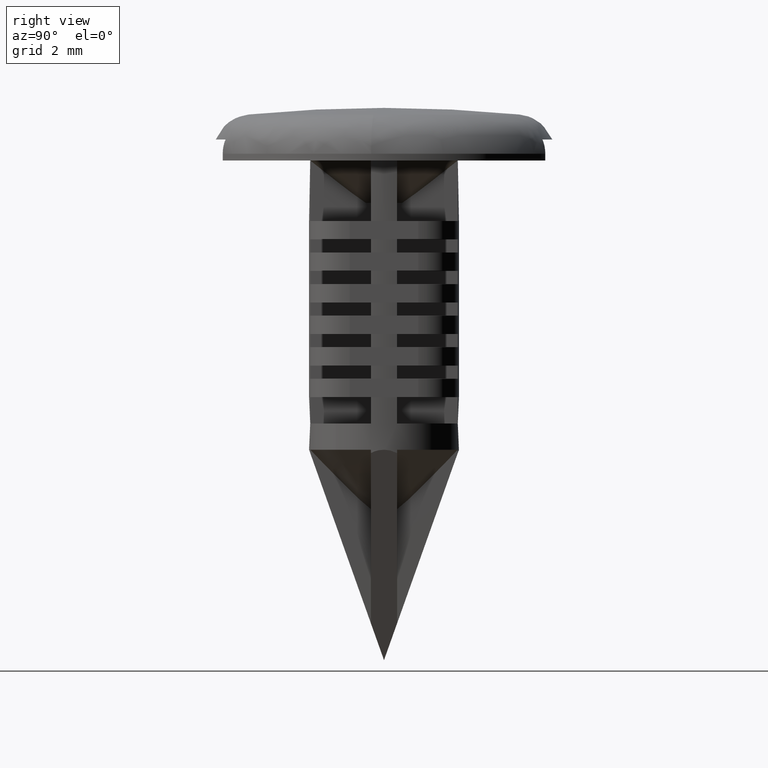
[diagram: clean part render]
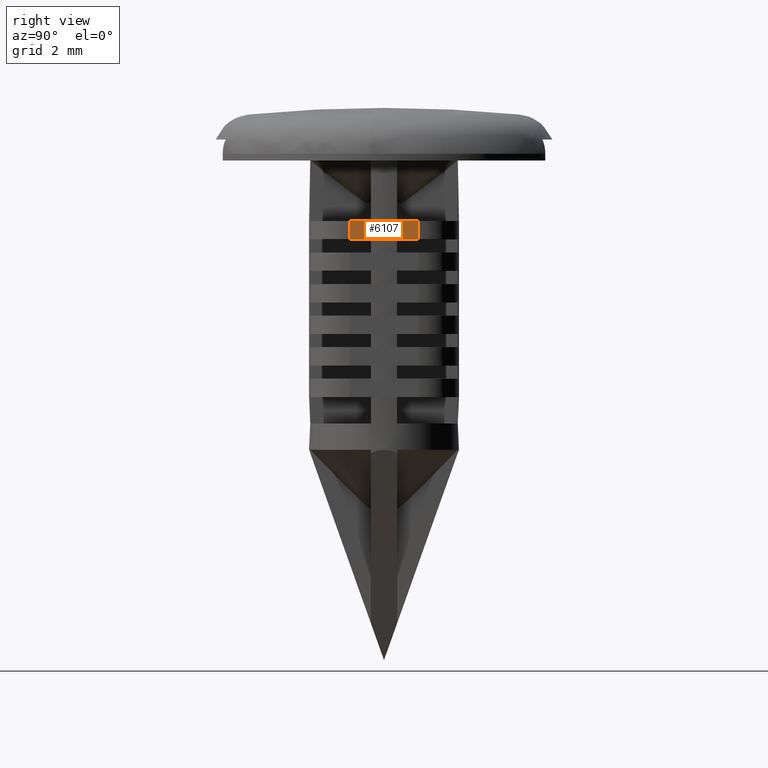
[diagram: same view with one face highlighted and labeled with its STEP entity id]
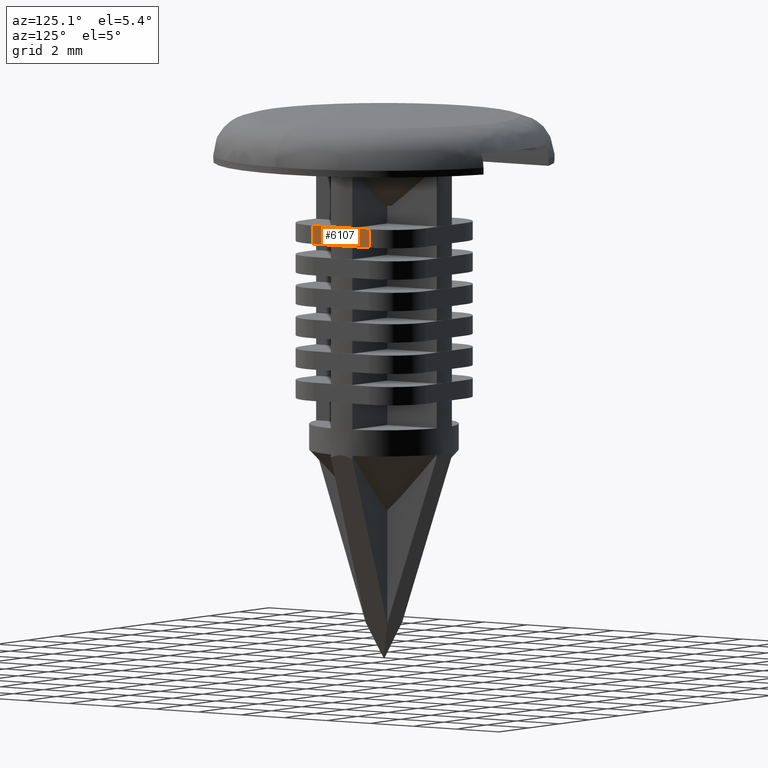
[diagram: same view with one face highlighted and labeled with its STEP entity id]
A machine part, right view. The second image highlights one B-rep face of the part: STEP entity #6107.
A second angle (auxiliary view) of the same face is appended — the face is thin or edge-on in the first view.
In plain terms, the highlighted face is a freeform B-spline surface patch.
Its self-contained STEP definition (entity closure, byte-faithful):
#5367=CARTESIAN_POINT('',(2.849999666233456,1.302098683407440,-4.300001263618515));
#5368=VERTEX_POINT('',#5367);
#5384=CARTESIAN_POINT('',(2.849999666233456,-7.850462E-017,-4.300001263618405));
#5385=VERTEX_POINT('',#5384);
#5386=CARTESIAN_POINT('',(2.849999666233456,1.302098683407440,-4.300001263618515));
#5387=CARTESIAN_POINT('',(2.849999666233456,-7.850462E-017,-4.300001263618405));
#5388=QUASI_UNIFORM_CURVE('',1,(#5386,#5387),.UNSPECIFIED.,.F.,.U.);
#5389=EDGE_CURVE('',#5368,#5385,#5388,.T.);
#5442=CARTESIAN_POINT('',(2.849999666233456,-7.850462E-017,-4.999998211860590));
#5443=VERTEX_POINT('',#5442);
#5457=CARTESIAN_POINT('',(2.849999666233456,1.302098683407440,-4.999998211860590));
#5458=VERTEX_POINT('',#5457);
#5459=CARTESIAN_POINT('',(2.849999666233456,1.302098683407440,-4.999998211860590));
#5460=CARTESIAN_POINT('',(2.849999666233456,-7.850462E-017,-4.999998211860590));
#5461=QUASI_UNIFORM_CURVE('',1,(#5459,#5460),.UNSPECIFIED.,.F.,.U.);
#5462=EDGE_CURVE('',#5458,#5443,#5461,.T.);
#5518=CARTESIAN_POINT('',(2.849999666233456,-1.302099295566012,-4.300001263618515));
#5519=VERTEX_POINT('',#5518);
#5537=CARTESIAN_POINT('',(2.849999666233456,-1.302099295566012,-4.999998211860590));
#5538=VERTEX_POINT('',#5537);
#5539=CARTESIAN_POINT('',(2.849999666233456,-1.302099295566012,-4.999998211860590));
#5540=CARTESIAN_POINT('',(2.849999666233456,-1.302099295566012,-4.300001263618515));
#5541=QUASI_UNIFORM_CURVE('',1,(#5539,#5540),.UNSPECIFIED.,.F.,.U.);
#5542=EDGE_CURVE('',#5538,#5519,#5541,.T.);
#5590=CARTESIAN_POINT('',(2.849999666233456,1.302098683407440,-4.999998211860590));
#5591=CARTESIAN_POINT('',(2.849999666233456,1.302098683407440,-4.300001263618515));
#5592=QUASI_UNIFORM_CURVE('',1,(#5590,#5591),.UNSPECIFIED.,.F.,.U.);
#5593=EDGE_CURVE('',#5458,#5368,#5592,.T.);
#5769=CARTESIAN_POINT('',(2.849999666233456,-7.850462E-017,-4.300001263618405));
#5770=CARTESIAN_POINT('',(2.849999666233456,-1.302099295566012,-4.300001263618515));
#5771=QUASI_UNIFORM_CURVE('',1,(#5769,#5770),.UNSPECIFIED.,.F.,.U.);
#5772=EDGE_CURVE('',#5385,#5519,#5771,.T.);
#5920=CARTESIAN_POINT('',(2.849999666233456,-7.850462E-017,-4.999998211860590));
#5921=CARTESIAN_POINT('',(2.849999666233456,-1.302099295566012,-4.999998211860590));
#5922=QUASI_UNIFORM_CURVE('',1,(#5920,#5921),.UNSPECIFIED.,.F.,.U.);
#5923=EDGE_CURVE('',#5443,#5538,#5922,.T.);
#6094=CARTESIAN_POINT('',(2.849999666233456,-1.432179043603313,-5.034962938219981));
#6095=CARTESIAN_POINT('',(2.849999666233456,-1.432179043603313,-4.265036299437520));
#6096=CARTESIAN_POINT('',(2.849999666233456,1.432178245177986,-5.034962938219981));
#6097=CARTESIAN_POINT('',(2.849999666233456,1.432178245177986,-4.265036299437520));
#6098=B_SPLINE_SURFACE_WITH_KNOTS('',1,1,((#6094,#6096),(#6095,#6097)),.UNSPECIFIED.,.F.,.F.,.U.,(2,2),(2,2),(0.041708477625996,0.958291805496067),(0.0,2.864357288781299),.UNSPECIFIED.);
#6099=ORIENTED_EDGE('',*,*,#5923,.T.);
#6100=ORIENTED_EDGE('',*,*,#5542,.T.);
#6101=ORIENTED_EDGE('',*,*,#5772,.F.);
#6102=ORIENTED_EDGE('',*,*,#5389,.F.);
#6103=ORIENTED_EDGE('',*,*,#5593,.F.);
#6104=ORIENTED_EDGE('',*,*,#5462,.T.);
#6105=EDGE_LOOP('',(#6099,#6100,#6101,#6102,#6103,#6104));
#6106=FACE_OUTER_BOUND('',#6105,.T.);
#6107=ADVANCED_FACE('',(#6106),#6098,.T.);